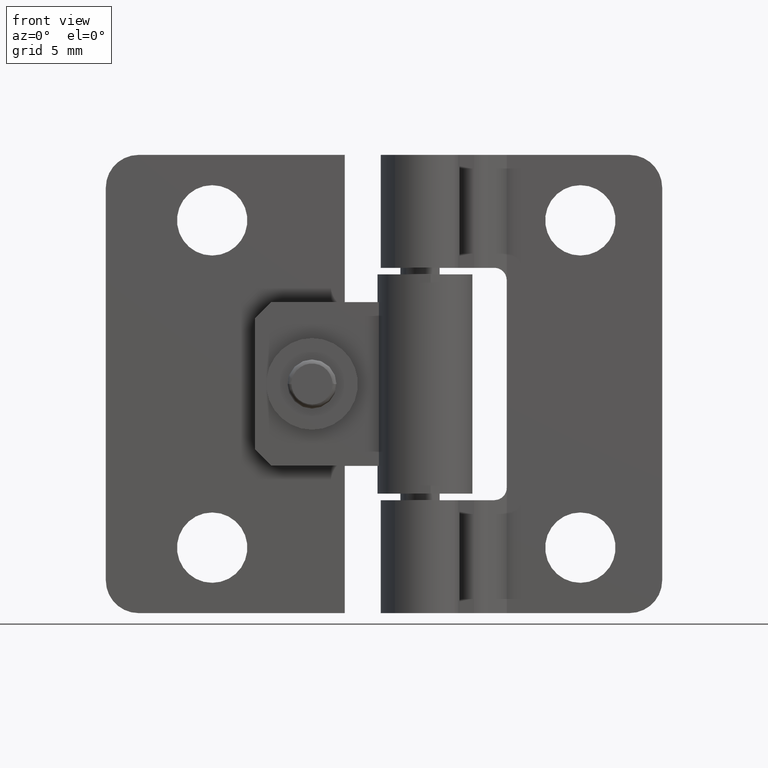
[diagram: clean part render]
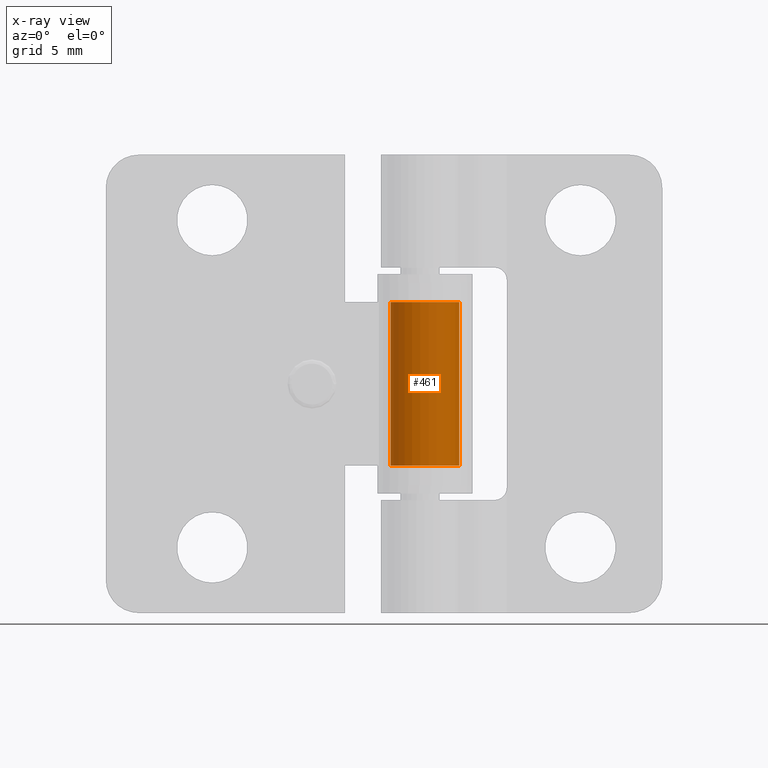
[diagram: x-ray — body ghosted, one internal face saturated and labeled with its STEP entity id]
A machine part, front view, then the same camera in x-ray: the body is ghosted and one INTERNAL B-rep face — a face not visible from any outside direction — is saturated and labeled: STEP entity #461.
In plain terms, the highlighted cylindrical surface (edge-blend (fillet) strip) has radius 2.1 mm, axis along (0, -0, 1).
Its self-contained STEP definition (entity closure, byte-faithful):
#461=ADVANCED_FACE('',(#1681),#1680,.F.);
#1680=CYLINDRICAL_SURFACE('',#2571,2.10000000000E+00);
#1681=FACE_OUTER_BOUND('',#2572,.T.);
#2568=CARTESIAN_POINT('',(2.74771561866E-15,3.37120461334E-16,1.92562500000E+01));
#2569=DIRECTION('',(5.23063056497E-16,-2.03628789560E-17,1.00000000000E+00));
#2570=DIRECTION('',(-6.59616052739E-01,7.51602729485E-01,3.60325584064E-16));
#2571=AXIS2_PLACEMENT_3D('',#2568,#2569,#2570);
#2572=EDGE_LOOP('',(#3336,#3337,#3338,#3339));
#3336=ORIENTED_EDGE('',*,*,#3782,.F.);
#3337=ORIENTED_EDGE('',*,*,#3783,.F.);
#3338=ORIENTED_EDGE('',*,*,#3784,.T.);
#3339=ORIENTED_EDGE('',*,*,#3775,.T.);
#3775=EDGE_CURVE('',#6044,#6072,#6079,.T.);
#3782=EDGE_CURVE('',#6126,#6072,#6127,.T.);
#3783=EDGE_CURVE('',#6133,#6126,#6134,.T.);
#3784=EDGE_CURVE('',#6133,#6044,#6140,.T.);
#6044=VERTEX_POINT('',#7825);
#6072=VERTEX_POINT('',#7841);
#6079=LINE('',#7845,#7846);
#6126=VERTEX_POINT('',#7874);
#6127=CIRCLE('',#7878,2.10000000000E+00);
#6133=VERTEX_POINT('',#7879);
#6134=LINE('',#7880,#7881);
#6140=CIRCLE('',#7886,2.10000000000E+00);
#7825=CARTESIAN_POINT('',(-2.09761769634E+00,1.00000000000E-01,9.00000000000E+00));
#7841=CARTESIAN_POINT('',(-2.09761769634E+00,1.00000000000E-01,1.90000000000E+01));
#7845=CARTESIAN_POINT('',(-2.09761769634E+00,1.00000000000E-01,9.00000000000E+00));
#7846=VECTOR('',#7847,1.00000000000E+01);
#7847=DIRECTION('',(0.00000000000E+00,0.00000000000E+00,1.00000000000E+00));
#7874=CARTESIAN_POINT('',(1.41065630065E-01,2.09525666399E+00,1.90000000000E+01));
#7875=CARTESIAN_POINT('',(0.00000000000E+00,-6.66133814775E-16,1.90000000000E+01));
#7876=DIRECTION('',(-1.59663273615E-15,1.07495185090E-16,-1.00000000000E+00));
#7877=DIRECTION('',(6.71741095547E-02,9.97741268569E-01,1.95967296834E-31));
#7878=AXIS2_PLACEMENT_3D('',#7875,#7876,#7877);
#7879=CARTESIAN_POINT('',(1.41065630065E-01,2.09525666399E+00,9.00000000000E+00));
#7880=CARTESIAN_POINT('',(1.41065630065E-01,2.09525666399E+00,9.00000000000E+00));
#7881=VECTOR('',#7882,1.00000000000E+01);
#7882=DIRECTION('',(0.00000000000E+00,0.00000000000E+00,1.00000000000E+00));
#7883=CARTESIAN_POINT('',(0.00000000000E+00,-6.66133814775E-16,9.00000000000E+00));
#7884=DIRECTION('',(0.00000000000E+00,0.00000000000E+00,-1.00000000000E+00));
#7885=DIRECTION('',(6.71741095547E-02,9.97741268569E-01,0.00000000000E+00));
#7886=AXIS2_PLACEMENT_3D('',#7883,#7884,#7885);